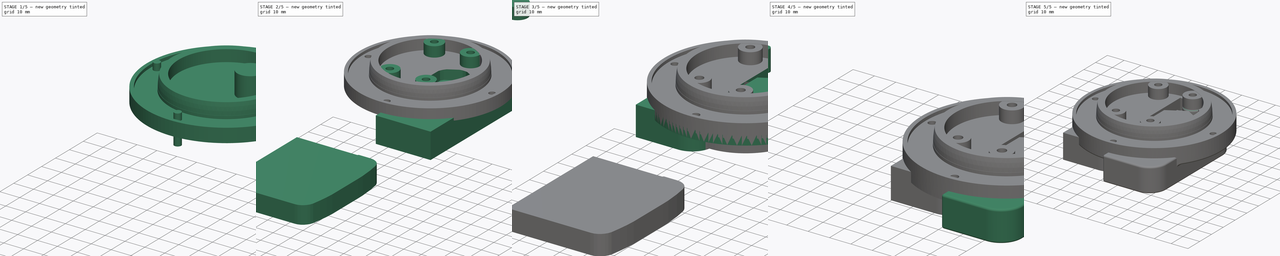
[diagram: build sequence overview — one tinted view per stage of 5, left to right]
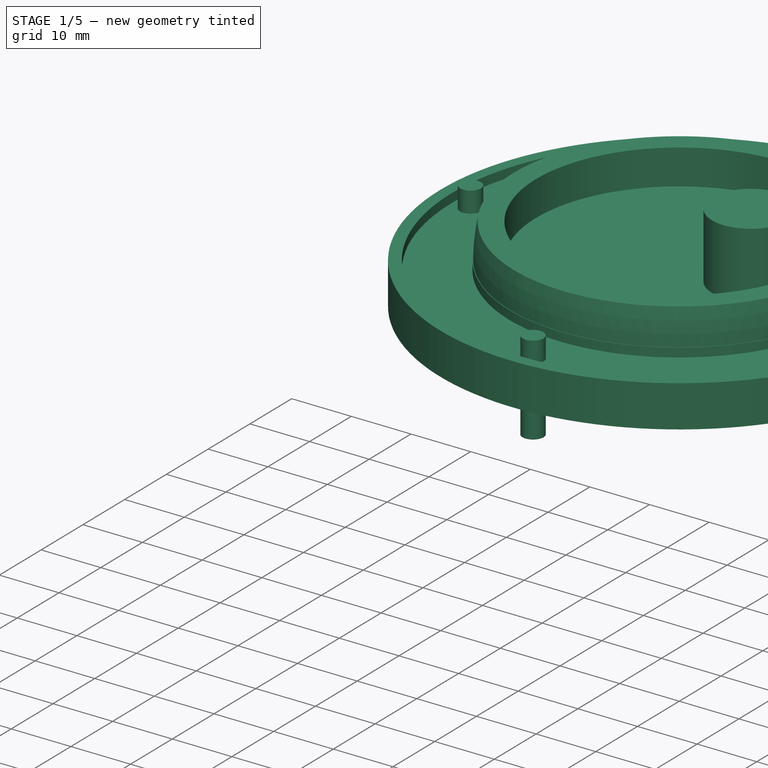
[diagram: stage 1 of 5 — iso view after this stage's code; geometry added in this stage tinted green]
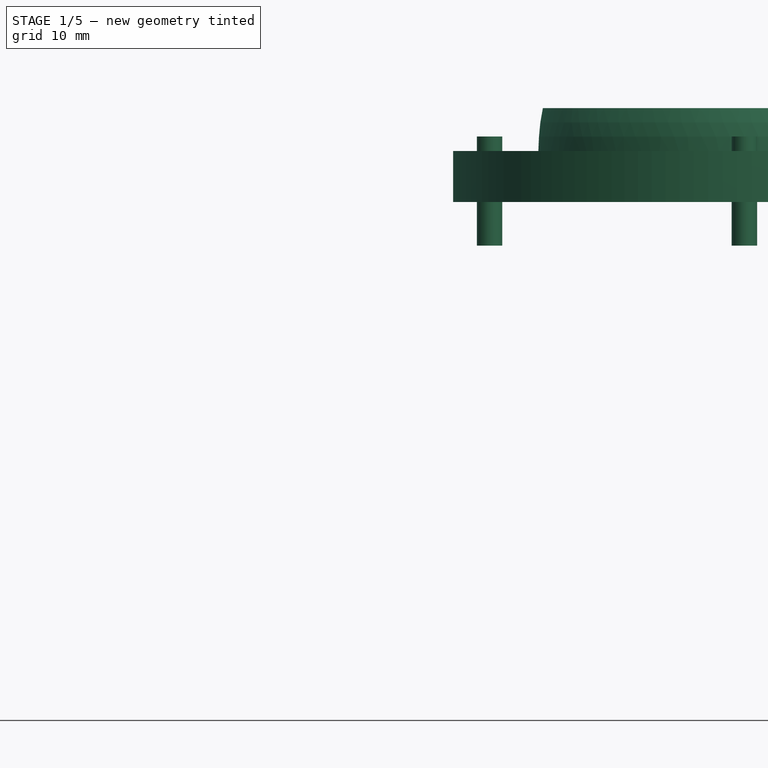
[diagram: stage 1 of 5 — front view after this stage's code; geometry added in this stage tinted green]
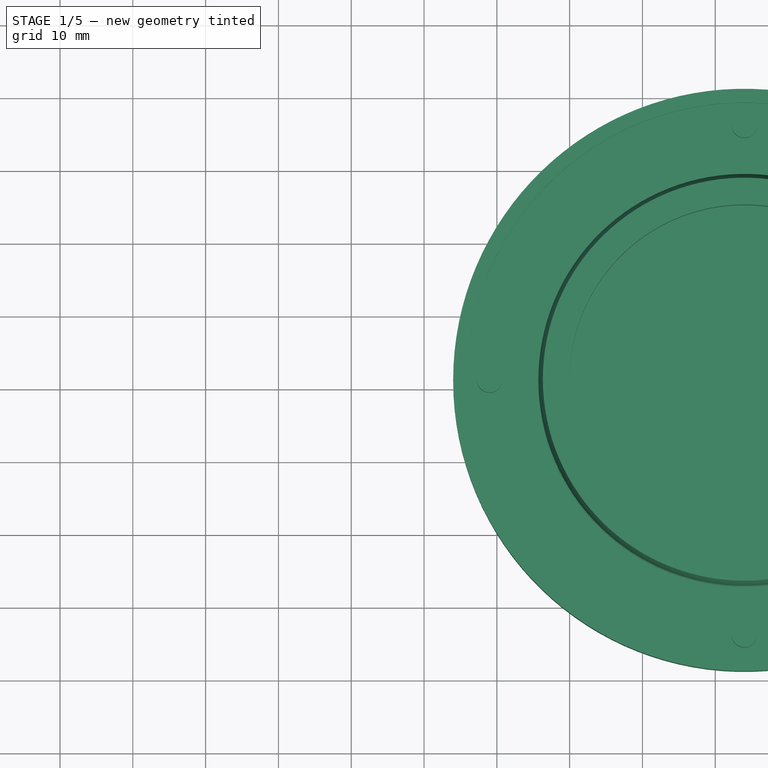
[diagram: stage 1 of 5 — top view after this stage's code; geometry added in this stage tinted green]
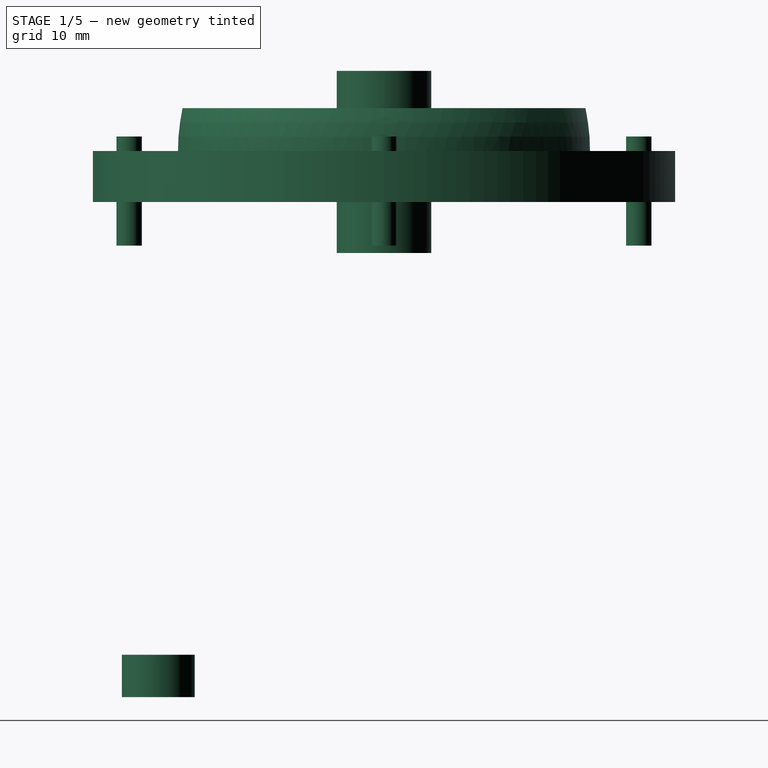
[diagram: stage 1 of 5 — right view after this stage's code; geometry added in this stage tinted green]
FCSTD DOCUMENT  (FreeCAD 0.21R33771 (Git))
Label: Polo_light_module_June_24_2024
License: All rights reserved
LicenseURL: https://en.wikipedia.org/wiki/All_rights_reserved
objects: Part::Cylinder×37, Part::MultiFuse×25, Part::Fillet×15, Part::Cut×14, Part::Feature×11, Sketcher::SketchObject×7, Part::Extrusion×5, Part::Box×3, PartDesign::Pad×2, PartDesign::Body×2, Part::Sphere×2, Part::FeaturePython×1, App::Part×1
note: 126 computed .brp shape members not serialized (recipe doc carries the construction recipe); baked Part::Feature solids carry a one-line shape summary decoded from their .brp

FEATURE [Part::Cylinder] Cylinder053
  Angle = 360
  AttacherType = Attacher::AttachEngine3D
  FirstAngle = 0
  Height = 5.82
  Placement = pos=(0,-21,0) rot=(0,0,1;0rad)
  Radius = 5
  SecondAngle = 0
FEATURE [Part::Cylinder] Cylinder054
  Angle = 360
  AttacherType = Attacher::AttachEngine3D
  FirstAngle = 0
  Height = 5.82
  Placement = pos=(20.5,-21,0) rot=(0,0,1;0rad)
  Radius = 5
  SecondAngle = 0
FEATURE [Part::Cylinder] Cylinder055  label="base003"
  Angle = 360
  AttacherType = Attacher::AttachEngine3D
  FirstAngle = 0
  Height = 7
  Placement = pos=(136,0,68) rot=(0,0,1;0rad)
  Radius = 40
  SecondAngle = 0
FEATURE [Part::Cylinder] Cylinder056  label="baseCut001"
  Angle = 360
  AttacherType = Attacher::AttachEngine3D
  FirstAngle = 0
  Height = 7
  Placement = pos=(5,0,74) rot=(0,0,1;0rad)
  Radius = 24
  SecondAngle = 0
FEATURE [Part::Sphere] Sphere002  label="SphereBase001"
  Angle1 = 0
  Angle2 = 12
  Angle3 = 360
  AttacherType = Attacher::AttachEngine3D
  Placement = pos=(5,0,74) rot=(0,0,1;0rad)
  Radius = 28.3
FEATURE [Part::Cut] Cut010
  Base = -> Sphere002
  Placement = pos=(131,0,1) rot=(0,0,1;0rad)
  Tool = -> Cylinder056
FEATURE [Part::MultiFuse] Fusion034  label="Base001"
  Placement = pos=(-2,10,0) rot=(0,0,1;0rad)
  Shapes = -> [Cut010,Cylinder055]
FEATURE [Part::FeaturePython] Tube  # WARN: FeaturePython — macro-defined, semantics opaque (R4)
  AttacherType = Attacher::AttachEngine3D
  Height = 4
  InnerRadius = 28.4
  OuterRadius = 38.1
  Placement = pos=(134,10,73.5) rot=(0,0,1;0rad)
FEATURE [Part::Cut] Cut
  Base = -> Fusion034
  Tool = -> Tube
FEATURE [Part::Cylinder] Cylinder057  label="m2HeatSetInsets004"
  Angle = 360
  AttacherType = Attacher::AttachEngine3D
  FirstAngle = 0
  Height = 15
  Placement = pos=(-30,0,65) rot=(0,0,1;0rad)
  Radius = 1.75
  SecondAngle = 0
  expr: Radius = 1.75
FEATURE [Part::Cylinder] Cylinder058  label="m2HeatSetInsets005"
  Angle = 360
  AttacherType = Attacher::AttachEngine3D
  FirstAngle = 0
  Height = 15
  Placement = pos=(40,0,65) rot=(0,0,1;0rad)
  Radius = 1.75
  SecondAngle = 0
FEATURE [Part::Cylinder] Cylinder059  label="m2HeatSetInsets006"
  Angle = 360
  AttacherType = Attacher::AttachEngine3D
  FirstAngle = 0
  Height = 15
  Placement = pos=(5,35,65) rot=(0,0,1;0rad)
  Radius = 1.75
  SecondAngle = 0
FEATURE [Part::Cylinder] Cylinder060  label="m2HeatSetInsets007"
  Angle = 360
  AttacherType = Attacher::AttachEngine3D
  FirstAngle = 0
  Height = 15
  Placement = pos=(5,-35,65) rot=(0,0,1;0rad)
  Radius = 1.75
  SecondAngle = 0
  expr: Radius = 1.75
FEATURE [Part::MultiFuse] Fusion035  label="M3 Screws"
  Placement = pos=(129,10,-3) rot=(0,0,1;0rad)
  Shapes = -> [Cylinder057,Cylinder058,Cylinder059,Cylinder060]
FEATURE [Sketcher::SketchObject] Sketch
  FullyConstrained = false
  sketch-geometry (6):
    g0: LineSegment StartX=133.954 StartY=-21.5799 StartZ=0 EndX=136.957 EndY=-23.3151 EndZ=0
    g1: LineSegment StartX=136.957 StartY=-23.3151 StartZ=0 EndX=136.957 EndY=-26.7269 EndZ=0
    g2: LineSegment StartX=136.957 StartY=-26.7269 StartZ=0 EndX=134.013 EndY=-28.4036 EndZ=0
    g3: LineSegment StartX=134.013 StartY=-28.4036 StartZ=0 EndX=131.088 EndY=-26.7074 EndZ=0
    g4: LineSegment StartX=131.088 StartY=-26.7074 StartZ=0 EndX=131.088 EndY=-23.3151 EndZ=0
    g5: LineSegment StartX=131.088 StartY=-23.3151 StartZ=0 EndX=133.954 EndY=-21.5799 EndZ=0
  constraints (7):
    c: Coincident(g1,g0)
    c: Vertical(g1)
    c: Coincident(g2,g1)
    c: Coincident(g4,g3)
    c: Vertical(g4)
    c: Coincident(g5,g4)
    c: Coincident(g5,g0)
FEATURE [Part::Extrusion] Extrude
  Base = -> Sketch
  Dir = (0,0,6)
  DirMode = 0
  FaceMakerClass = Part::FaceMakerBullseye
  LengthFwd = 2.5
  LengthRev = 0
  Placement = pos=(0,0,61) rot=(0,0,1;0rad)
  Solid = true
  Symmetric = false
FEATURE [Sketcher::SketchObject] Sketch002
  FullyConstrained = false
  sketch-geometry (6):
    g0: LineSegment StartX=133.954 StartY=-21.5799 StartZ=0 EndX=136.957 EndY=-23.3151 EndZ=0
    g1: LineSegment StartX=136.957 StartY=-23.3151 StartZ=0 EndX=136.957 EndY=-26.7269 EndZ=0
    g2: LineSegment StartX=136.957 StartY=-26.7269 StartZ=0 EndX=134.013 EndY=-28.4036 EndZ=0
    g3: LineSegment StartX=134.013 StartY=-28.4036 StartZ=0 EndX=131.088 EndY=-26.7074 EndZ=0
    g4: LineSegment StartX=131.088 StartY=-26.7074 StartZ=0 EndX=131.088 EndY=-23.3151 EndZ=0
    g5: LineSegment StartX=131.088 StartY=-23.3151 StartZ=0 EndX=133.954 EndY=-21.5799 EndZ=0
  constraints (7):
    c: Coincident(g1,g0)
    c: Vertical(g1)
    c: Coincident(g2,g1)
    c: Coincident(g4,g3)
    c: Vertical(g4)
    c: Coincident(g5,g4)
    c: Coincident(g5,g0)
FEATURE [Part::Extrusion] Extrude001
  Base = -> Sketch002
  Dir = (0,0,6)
  DirMode = 0
  FaceMakerClass = Part::FaceMakerBullseye
  LengthFwd = 2.5
  LengthRev = 0
  Placement = pos=(0,70,61) rot=(0,0,1;0rad)
  Solid = true
  Symmetric = false
FEATURE [Sketcher::SketchObject] Sketch003
  FullyConstrained = false
  sketch-geometry (6):
    g0: LineSegment StartX=133.954 StartY=-21.5799 StartZ=0 EndX=136.957 EndY=-23.3151 EndZ=0
    g1: LineSegment StartX=136.957 StartY=-23.3151 StartZ=0 EndX=136.957 EndY=-26.7269 EndZ=0
    g2: LineSegment StartX=136.957 StartY=-26.7269 StartZ=0 EndX=134.013 EndY=-28.4036 EndZ=0
    g3: LineSegment StartX=134.013 StartY=-28.4036 StartZ=0 EndX=131.088 EndY=-26.7074 EndZ=0
    g4: LineSegment StartX=131.088 StartY=-26.7074 StartZ=0 EndX=131.088 EndY=-23.3151 EndZ=0
    g5: LineSegment StartX=131.088 StartY=-23.3151 StartZ=0 EndX=133.954 EndY=-21.5799 EndZ=0
  constraints (7):
    c: Coincident(g1,g0)
    c: Vertical(g1)
    c: Coincident(g2,g1)
    c: Coincident(g4,g3)
    c: Vertical(g4)
    c: Coincident(g5,g4)
    c: Coincident(g5,g0)
FEATURE [Part::Extrusion] Extrude002
  Base = -> Sketch003
  Dir = (0,0,6)
  DirMode = 0
  FaceMakerClass = Part::FaceMakerBullseye
  LengthFwd = 2.5
  LengthRev = 0
  Placement = pos=(-35,35,61) rot=(0,0,1;0rad)
  Solid = true
  Symmetric = false
FEATURE [Sketcher::SketchObject] Sketch004
  FullyConstrained = false
  sketch-geometry (6):
    g0: LineSegment StartX=133.954 StartY=-21.5799 StartZ=0 EndX=136.957 EndY=-23.3151 EndZ=0
    g1: LineSegment StartX=136.957 StartY=-23.3151 StartZ=0 EndX=136.957 EndY=-26.7269 EndZ=0
    g2: LineSegment StartX=136.957 StartY=-26.7269 StartZ=0 EndX=134.013 EndY=-28.4036 EndZ=0
    g3: LineSegment StartX=134.013 StartY=-28.4036 StartZ=0 EndX=131.088 EndY=-26.7074 EndZ=0
    g4: LineSegment StartX=131.088 StartY=-26.7074 StartZ=0 EndX=131.088 EndY=-23.3151 EndZ=0
    g5: LineSegment StartX=131.088 StartY=-23.3151 StartZ=0 EndX=133.954 EndY=-21.5799 EndZ=0
  constraints (7):
    c: Coincident(g1,g0)
    c: Vertical(g1)
    c: Coincident(g2,g1)
    c: Coincident(g4,g3)
    c: Vertical(g4)
    c: Coincident(g5,g4)
    c: Coincident(g5,g0)
FEATURE [Part::Extrusion] Extrude003
  Base = -> Sketch004
  Dir = (0,0,6)
  DirMode = 0
  FaceMakerClass = Part::FaceMakerBullseye
  LengthFwd = 2.5
  LengthRev = 0
  Placement = pos=(35,35,61) rot=(0,0,1;0rad)
  Solid = true
  Symmetric = false
FEATURE [Part::MultiFuse] Fusion037  label="Nut Cuts"
  Placement = pos=(0,0,7) rot=(0,0,1;0rad)
  Shapes = -> [Extrude003,Extrude002,Extrude001,Extrude]
FEATURE [Part::MultiFuse] Fusion038  label="Base Cuts 1"
  Shapes = -> [Fusion035,Fusion037]
FEATURE [Part::Cylinder] Cylinder
  Angle = 360
  AttacherType = Attacher::AttachEngine3D
  FirstAngle = 0
  Height = 25
  Placement = pos=(146,10,61) rot=(0,0,1;0rad)
  Radius = 6.5
  SecondAngle = 0
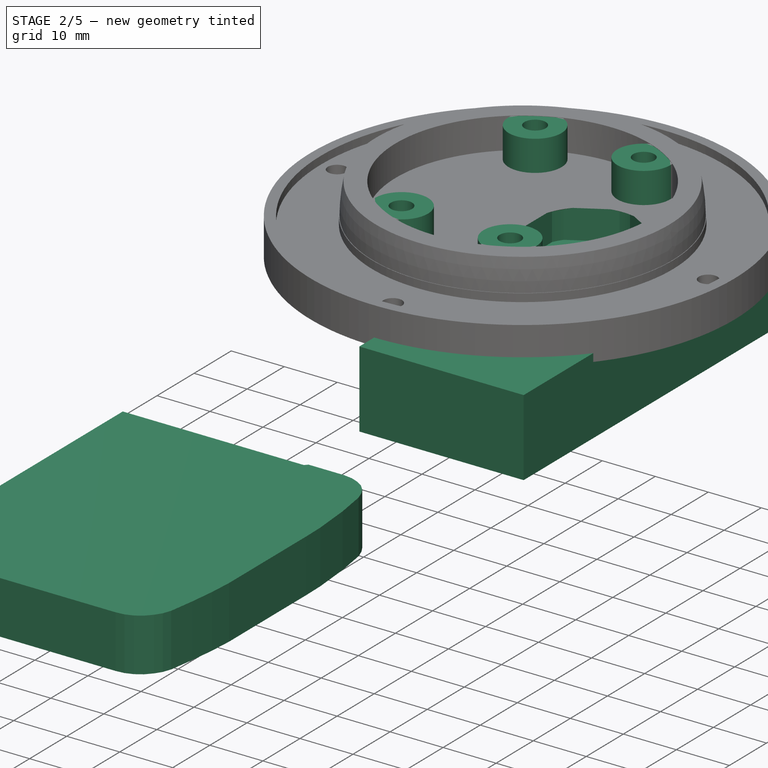
[diagram: stage 2 of 5 — iso view after this stage's code; geometry added in this stage tinted green]
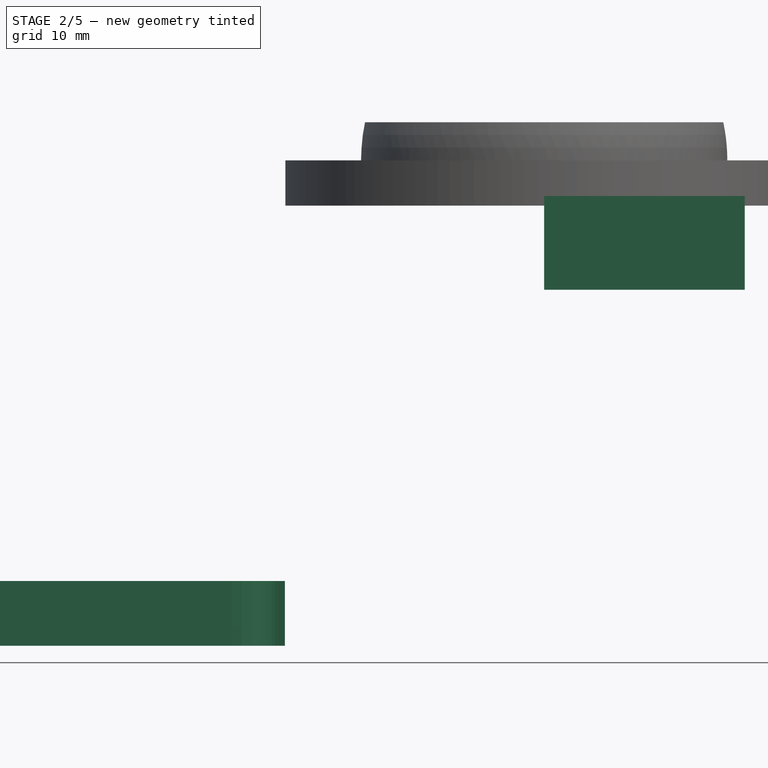
[diagram: stage 2 of 5 — front view after this stage's code; geometry added in this stage tinted green]
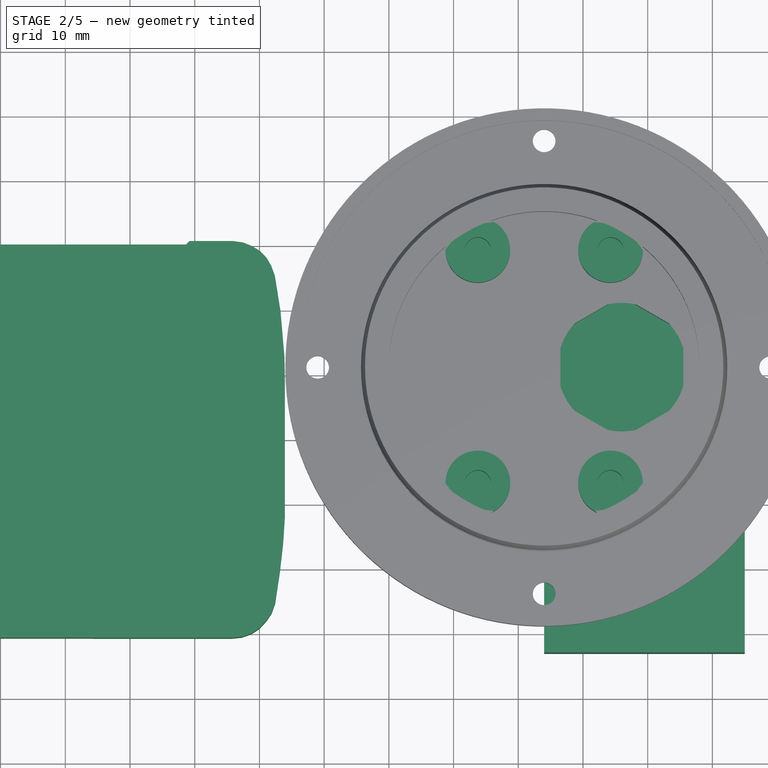
[diagram: stage 2 of 5 — top view after this stage's code; geometry added in this stage tinted green]
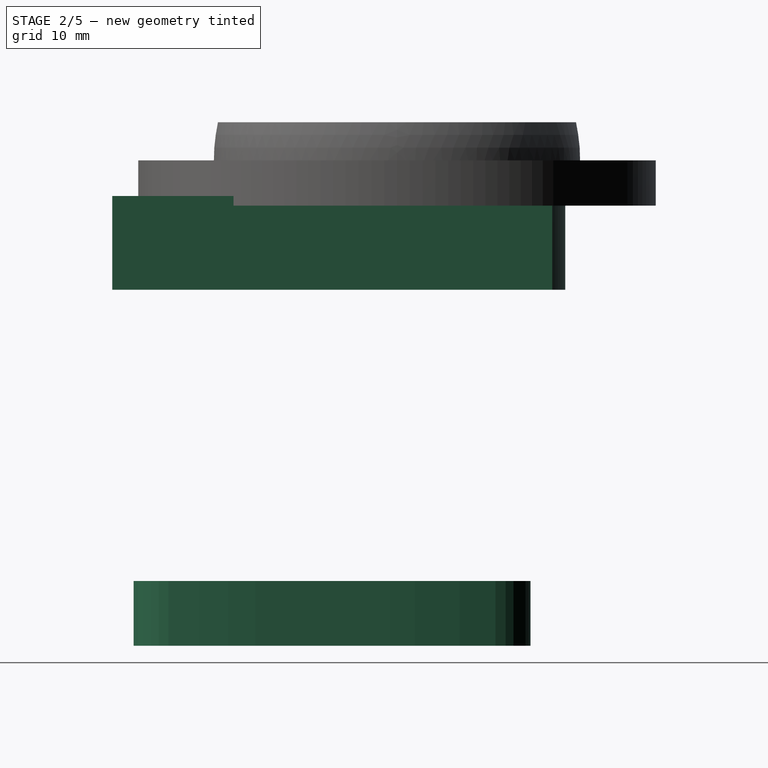
[diagram: stage 2 of 5 — right view after this stage's code; geometry added in this stage tinted green]
FEATURE [Part::Cylinder] Cylinder051
  Angle = 360
  AttacherType = Attacher::AttachEngine3D
  FirstAngle = 0
  Height = 5.82
  Placement = pos=(0,-21,0) rot=(0,0,1;0rad)
  Radius = 5
  SecondAngle = 0
FEATURE [Part::Cylinder] Cylinder052
  Angle = 360
  AttacherType = Attacher::AttachEngine3D
  FirstAngle = 0
  Height = 5.82
  Placement = pos=(20.5,-21,0) rot=(0,0,1;0rad)
  Radius = 5
  SecondAngle = 0
  expr: Radius = 5
FEATURE [Part::MultiFuse] Fusion031  label="m3HeatSetCuts006"
  Placement = pos=(-5,39,70) rot=(0,0,1;0rad)
  Shapes = -> [Cylinder052,Cylinder051]
FEATURE [Part::MultiFuse] Fusion032  label="m3HeatSetCuts007"
  Placement = pos=(-5,3,70) rot=(0,0,1;0rad)
  Shapes = -> [Cylinder054,Cylinder053]
FEATURE [Part::MultiFuse] Fusion033  label="m3HeatSetCuts008"
  Placement = pos=(128.75,10,5) rot=(0,0,1;0rad)
  Shapes = -> [Fusion032,Fusion031]
FEATURE [Part::MultiFuse] Fusion036  label="Fused Base"
  Shapes = -> [Cut,Fusion033]
FEATURE [Part::Cut] Cut011  label="Base01"
  Base = -> Fusion036
  Tool = -> Fusion038
FEATURE [Part::Box] Box007  label="Cube003"
  AttacherType = Attacher::AttachEngine3D
  Height = 14.5
  Length = 31
  Placement = pos=(134,-34,55) rot=(0,0,1;0rad)
  Width = 68
FEATURE [Sketcher::SketchObject] Sketch005
  FullyConstrained = false
  MapMode = 5
  Support = -> [XY_Plane002]
  sketch-geometry (49):
    g0: GeomPoint X=44.5093 Y=-30.668 Z=0
    g1: GeomPoint X=85.7303 Y=-30.7001 Z=0
    g2: GeomPoint X=87.2659 Y=-30.5404 Z=0
    g3: GeomPoint X=91.8923 Y=-26.8165 Z=0
    g4: GeomPoint X=92.4288 Y=-25.33 Z=0
    g5: GeomPoint X=93.1446 Y=-20.5457 Z=0
    g6: GeomPoint X=93.6599 Y=-16.0974 Z=0
    g7: GeomPoint X=93.9312 Y=-11.8931 Z=0
    g8: GeomPoint X=93.9312 Y=6.25646 Z=0
    g9: GeomPoint X=93.9401 Y=8.91625 Z=0
    g10: GeomPoint X=93.8644 Y=12.7559 Z=0
    g11: GeomPoint X=93.2714 Y=19.6725 Z=0
    g12: GeomPoint X=92.3963 Y=25.2341 Z=0
    g13: GeomPoint X=91.8282 Y=26.7962 Z=0
    g14: GeomPoint X=91.1285 Y=27.9983 Z=0
    g15: GeomPoint X=90.1597 Y=29.0389 Z=0
    g16: GeomPoint X=88.8662 Y=29.8509 Z=0
    g17: GeomPoint X=87.4629 Y=30.4081 Z=0
    g18: GeomPoint X=85.8119 Y=30.6351 Z=0
    g19: GeomPoint X=79.1753 Y=30.6351 Z=0
    g20: GeomPoint X=78.6575 Y=30.0897 Z=0
    g21: GeomPoint X=44.5006 Y=30.0897 Z=0
    g22: LineSegment StartX=44.5093 StartY=-30.668 StartZ=0 EndX=85.7303 EndY=-30.7001 EndZ=0
    g23: LineSegment StartX=85.7303 StartY=-30.7001 StartZ=0 EndX=87.2659 EndY=-30.5404 EndZ=0
    g24: LineSegment StartX=91.0945 StartY=-28.018 StartZ=0 EndX=91.8923 EndY=-26.8165 EndZ=0
    g25: LineSegment StartX=91.8923 StartY=-26.8165 StartZ=0 EndX=92.4288 EndY=-25.33 EndZ=0
    g26: LineSegment StartX=92.4288 StartY=-25.33 StartZ=0 EndX=93.1446 EndY=-20.5457 EndZ=0
    g27: LineSegment StartX=93.1446 StartY=-20.5457 StartZ=0 EndX=93.6599 EndY=-16.0974 EndZ=0
    g28: LineSegment StartX=93.6599 StartY=-16.0974 StartZ=0 EndX=93.9312 EndY=-11.8931 EndZ=0
    g29: LineSegment StartX=93.9312 StartY=-11.8931 StartZ=0 EndX=93.9312 EndY=6.25646 EndZ=0
    g30: LineSegment StartX=93.9312 StartY=6.25646 StartZ=0 EndX=93.9401 EndY=8.91625 EndZ=0
    g31: GeomPoint X=93.5743 Y=16.1437 Z=0
    g32: LineSegment StartX=93.9401 StartY=8.91625 StartZ=0 EndX=93.8644 EndY=12.7559 EndZ=0
    g33: LineSegment StartX=93.8644 StartY=12.7559 StartZ=0 EndX=93.5743 EndY=16.1437 EndZ=0
    g34: LineSegment StartX=93.5743 StartY=16.1437 StartZ=0 EndX=93.2714 EndY=19.6725 EndZ=0
    g35: LineSegment StartX=93.2714 StartY=19.6725 StartZ=0 EndX=92.3963 EndY=25.2341 EndZ=0
    g36: LineSegment StartX=92.3963 StartY=25.2341 StartZ=0 EndX=91.8282 EndY=26.7962 EndZ=0
    g37: LineSegment StartX=91.8282 StartY=26.7962 StartZ=0 EndX=91.1285 EndY=27.9983 EndZ=0
    g38: LineSegment StartX=91.1285 StartY=27.9983 StartZ=0 EndX=90.1597 EndY=29.0389 EndZ=0
    g39: LineSegment StartX=90.1597 StartY=29.0389 StartZ=0 EndX=88.8662 EndY=29.8509 EndZ=0
    g40: LineSegment StartX=88.8662 StartY=29.8509 StartZ=0 EndX=87.4629 EndY=30.4081 EndZ=0
    g41: LineSegment StartX=87.4629 StartY=30.4081 StartZ=0 EndX=85.8119 EndY=30.6351 EndZ=0
    g42: LineSegment StartX=85.8119 StartY=30.6351 StartZ=0 EndX=79.1753 EndY=30.6351 EndZ=0
    g43: LineSegment StartX=79.1753 StartY=30.6351 StartZ=0 EndX=78.6575 EndY=30.0897 EndZ=0
    g44: LineSegment StartX=78.6575 StartY=30.0897 StartZ=0 EndX=44.5006 EndY=30.0897 EndZ=0
    g45: LineSegment StartX=44.5093 StartY=-30.668 StartZ=0 EndX=44.5006 EndY=30.0897 EndZ=0
    g46: LineSegment StartX=87.2659 StartY=-30.5404 StartZ=0 EndX=88.7273 EndY=-30.0287 EndZ=0
    g47: LineSegment StartX=88.7273 StartY=-30.0287 StartZ=0 EndX=90.018 EndY=-29.1936 EndZ=0
    g48: LineSegment StartX=90.018 StartY=-29.1936 StartZ=0 EndX=91.0945 EndY=-28.018 EndZ=0
  constraints (42):
    c: Coincident(g22,g0)
    c: Coincident(g22,g1)
    c: Coincident(g23,g22)
    c: Coincident(g23,g2)
    c: Coincident(g24,g3)
    c: Coincident(g25,g24)
    c: Coincident(g25,g4)
    c: Coincident(g26,g25)
    c: Coincident(g26,g5)
    c: Coincident(g27,g26)
    c: Coincident(g27,g6)
    c: Coincident(g28,g27)
    c: Coincident(g28,g7)
    c: Coincident(g29,g28)
    c: Coincident(g29,g8)
    c: Coincident(g30,g29)
    c: Coincident(g30,g9)
    c: Coincident(g32,g30)
    c: Coincident(g32,g10)
    c: Coincident(g33,g32)
    c: Coincident(g33,g31)
    c: Coincident(g34,g11)
    c: Coincident(g35,g34)
    c: Coincident(g35,g12)
    c: Coincident(g36,g13)
    c: Coincident(g37,g14)
    c: Coincident(g38,g37)
    c: Coincident(g38,g15)
    c: Coincident(g39,g16)
    c: Coincident(g40,g17)
    c: Coincident(g41,g18)
    c: Coincident(g42,g41)
    c: Coincident(g42,g19)
    c: Coincident(g43,g42)
    c: Coincident(g43,g20)
    c: Coincident(g44,g43)
    c: Coincident(g44,g21)
    c: Coincident(g45,g22)
    c: Coincident(g46,g23)
    c: Coincident(g47,g46)
    c: Coincident(g48,g47)
    c: Coincident(g48,g24)
FEATURE [PartDesign::Pad] Pad002
  Direction = (0,0,1)
  Length = 10
  Length2 = 10
  Profile = -> Sketch005
  ReferenceAxis = -> Sketch005 [N_Axis]
  Type = 0
  expr: Length = 10
FEATURE [Part::Feature] Part__Feature004  label="69915K46_Plastic Submersible Cord Grip"
  shape: bbox 8.548 x 8.548 x 5.5 mm, 6 faces (baked)
FEATURE [Part::Feature] Part__Feature005  label="69915K46_Plastic Submersible Cord Grip001"
  shape: bbox 14.5 x 14.5 x 1.5 mm, 4 faces (baked)
FEATURE [Part::Feature] Part__Feature006  label="69915K46_Plastic Submersible Cord Grip002"
  shape: bbox 16.78 x 16.78 x 11 mm, 39 faces (baked)
FEATURE [Part::Feature] Part__Feature007  label="69915K46_Plastic Submersible Cord Grip003"
  shape: bbox 20.9 x 20.9 x 7.541 mm, 32 faces (baked)
FEATURE [Part::Feature] Part__Feature008  label="69915K46_Plastic Submersible Cord Grip004"
  shape: bbox 16.5 x 16.5 x 26.93 mm, 70 faces (baked)
FEATURE [App::Part] _9915K46_Plastic_Submersible_Cord_Grip  label="69915K46_Plastic Submersible Cord Grip005"
  Group = -> [Part__Feature004,Part__Feature005,Part__Feature006,Part__Feature007,Part__Feature008]
  Origin = -> Origin
  Placement = pos=(146,10,49) rot=(1,0,0;3.14159rad)
FEATURE [Part::Feature] Part__Feature010  label="69915K46_Plastic Submersible Cord Grip007"
  Placement = pos=(146,10,84) rot=(0,0,1;0rad)
  shape: bbox 20.9 x 20.9 x 7.541 mm, 32 faces (baked)
FEATURE [Part::Cut] Cut013
  Base = -> Cut011
  Tool = -> Part__Feature010
FEATURE [Part::Cut] Cut014
  Base = -> Cut013
  Tool = -> Cylinder
FEATURE [Part::Cylinder] Cylinder061
  Angle = 360
  AttacherType = Attacher::AttachEngine3D
  FirstAngle = 0
  Height = 10
  Placement = pos=(0,-21,0) rot=(0,0,1;0rad)
  Radius = 2
  SecondAngle = 0
FEATURE [Part::Cylinder] Cylinder062
  Angle = 360
  AttacherType = Attacher::AttachEngine3D
  FirstAngle = 0
  Height = 10
  Placement = pos=(20.5,-21,0) rot=(0,0,1;0rad)
  Radius = 2
  SecondAngle = 0
FEATURE [Part::Cylinder] Cylinder063
  Angle = 360
  AttacherType = Attacher::AttachEngine3D
  FirstAngle = 0
  Height = 10
  Placement = pos=(0,-21,0) rot=(0,0,1;0rad)
  Radius = 2
  SecondAngle = 0
FEATURE [Part::Cylinder] Cylinder064
  Angle = 360
  AttacherType = Attacher::AttachEngine3D
  FirstAngle = 0
  Height = 10
  Placement = pos=(20.5,-21,0) rot=(0,0,1;0rad)
  Radius = 2
  SecondAngle = 0
FEATURE [Part::MultiFuse] Fusion039  label="m3HeatSetCuts009"
  Placement = pos=(-5,39,70) rot=(0,0,1;0rad)
  Shapes = -> [Cylinder062,Cylinder061]
FEATURE [Part::MultiFuse] Fusion040  label="m3HeatSetCuts010"
  Placement = pos=(-5,3,70) rot=(0,0,1;0rad)
  Shapes = -> [Cylinder064,Cylinder063]
FEATURE [Part::MultiFuse] Fusion041  label="m3HeatSetCuts011"
  Placement = pos=(128.75,10,4.5) rot=(0,0,1;0rad)
  Shapes = -> [Fusion040,Fusion039]
FEATURE [Part::Feature] Part__Feature011  label="69915K46_Plastic Submersible Cord Grip008"
  Placement = pos=(146,10,82) rot=(0,0,1;0rad)
  shape: bbox 20.9 x 20.9 x 7.541 mm, 32 faces (baked)
FEATURE [Part::Cut] Cut015
  Base = -> Cut014
  Tool = -> Part__Feature011
FEATURE [Part::Cylinder] Cylinder065
  Angle = 180
  AttacherType = Attacher::AttachEngine3D
  FirstAngle = 0
  Height = 13
  Placement = pos=(134,10,55) rot=(0,0,1;4.71239rad)
  Radius = 26
  SecondAngle = 0
FEATURE [Part::Cut] Cut017
  Base = -> Cut015
  Tool = -> Fusion041
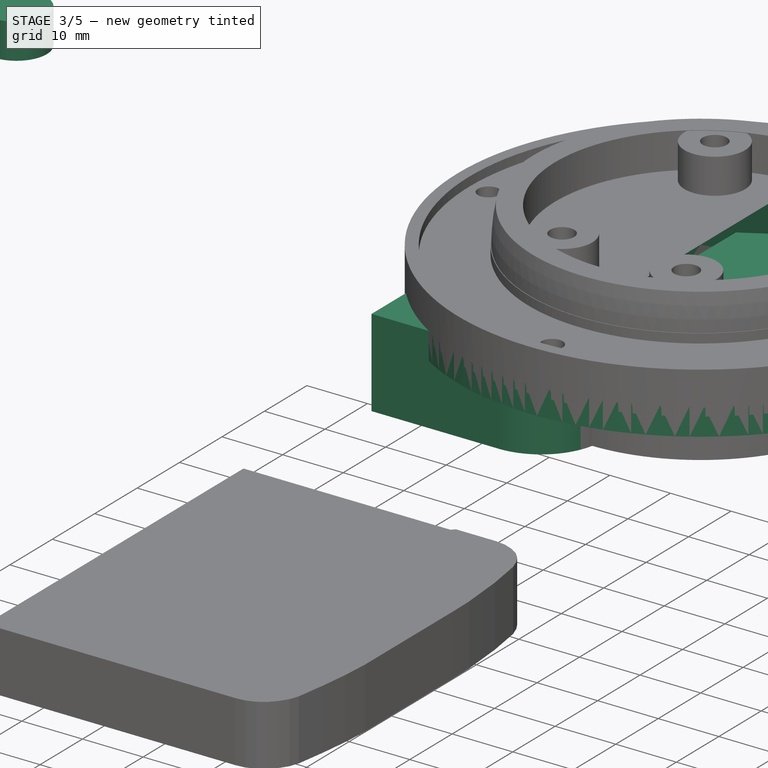
[diagram: stage 3 of 5 — iso view after this stage's code; geometry added in this stage tinted green]
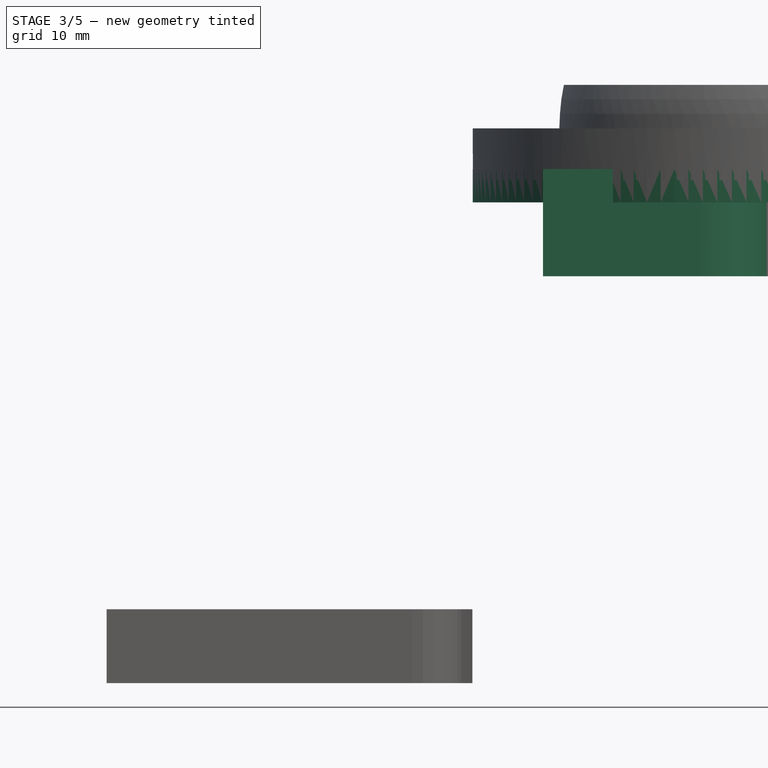
[diagram: stage 3 of 5 — front view after this stage's code; geometry added in this stage tinted green]
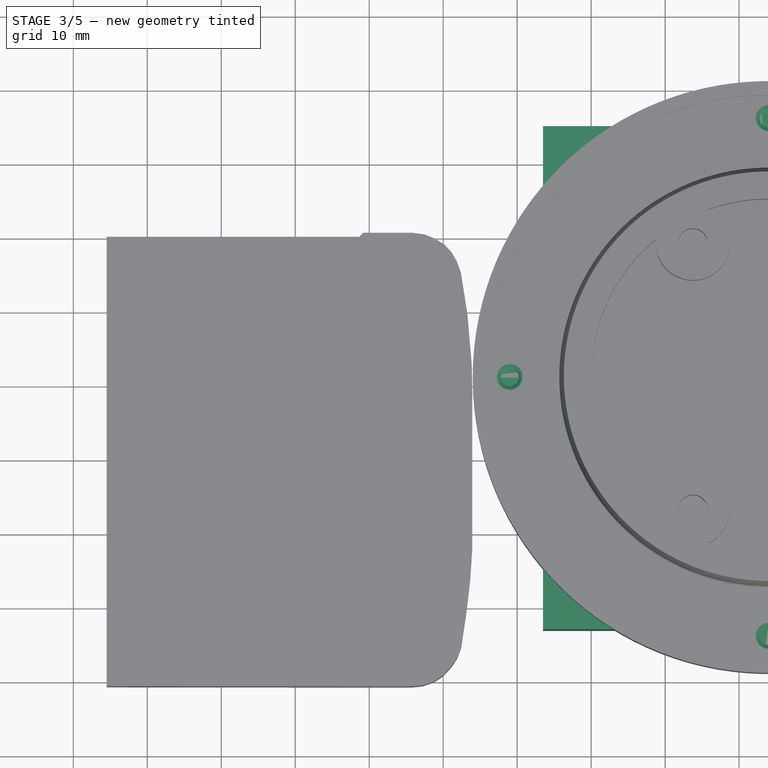
[diagram: stage 3 of 5 — top view after this stage's code; geometry added in this stage tinted green]
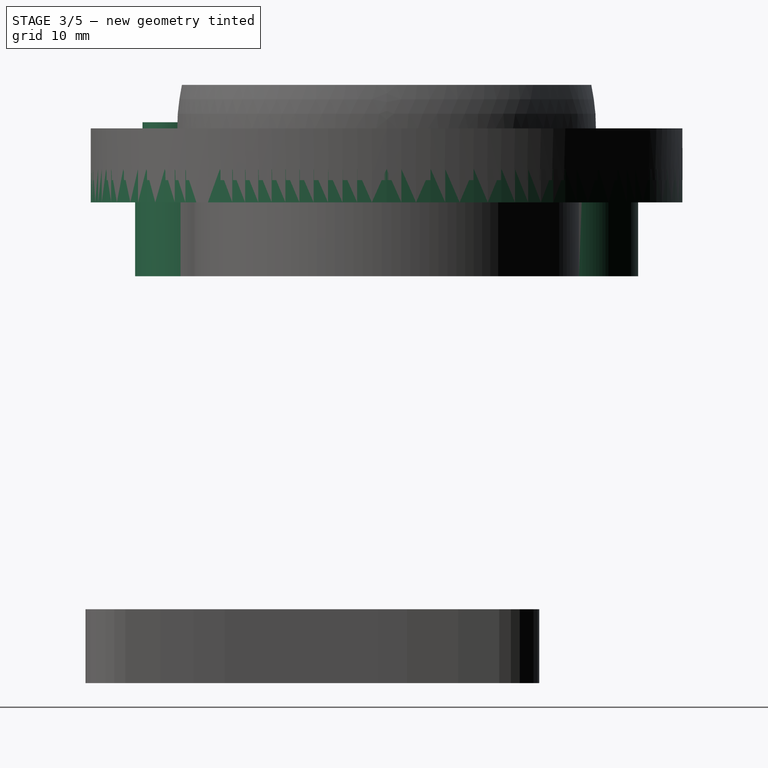
[diagram: stage 3 of 5 — right view after this stage's code; geometry added in this stage tinted green]
FEATURE [Part::Cylinder] Cylinder022
  Angle = 360
  AttacherType = Attacher::AttachEngine3D
  FirstAngle = 0
  Height = 5.82
  Placement = pos=(0,-21,0) rot=(0,0,1;0rad)
  Radius = 5
  SecondAngle = 0
FEATURE [Part::Cylinder] Cylinder023
  Angle = 360
  AttacherType = Attacher::AttachEngine3D
  FirstAngle = 0
  Height = 5.82
  Placement = pos=(20.5,-21,0) rot=(0,0,1;0rad)
  Radius = 5
  SecondAngle = 0
  expr: Radius = 5
FEATURE [Part::Cylinder] Cylinder024
  Angle = 360
  AttacherType = Attacher::AttachEngine3D
  FirstAngle = 0
  Height = 5.82
  Placement = pos=(0,-21,0) rot=(0,0,1;0rad)
  Radius = 5
  SecondAngle = 0
FEATURE [Part::Cylinder] Cylinder025
  Angle = 360
  AttacherType = Attacher::AttachEngine3D
  FirstAngle = 0
  Height = 5.82
  Placement = pos=(20.5,-21,0) rot=(0,0,1;0rad)
  Radius = 5
  SecondAngle = 0
FEATURE [Part::Cylinder] Cylinder026  label="base"
  Angle = 360
  AttacherType = Attacher::AttachEngine3D
  FirstAngle = 0
  Height = 4.5
  Placement = pos=(136,0,65) rot=(0,0,1;0rad)
  Radius = 40
  SecondAngle = 0
FEATURE [Part::Cylinder] Cylinder027  label="baseCut"
  Angle = 360
  AttacherType = Attacher::AttachEngine3D
  FirstAngle = 0
  Height = 7
  Placement = pos=(5,0,74) rot=(0,0,1;0rad)
  Radius = 24
  SecondAngle = 0
FEATURE [Part::MultiFuse] Fusion010  label="m3HeatSetCuts"
  Placement = pos=(-5,39,70) rot=(0,0,1;0rad)
  Shapes = -> [Cylinder023,Cylinder022]
FEATURE [Part::MultiFuse] Fusion011  label="m3HeatSetCuts001"
  Placement = pos=(-5,3,70) rot=(0,0,1;0rad)
  Shapes = -> [Cylinder025,Cylinder024]
FEATURE [Sketcher::SketchObject] Sketch001
  FullyConstrained = false
  MapMode = 5
  Support = -> [XY_Plane001]
  sketch-geometry (49):
    g0: GeomPoint X=44.5093 Y=-30.668 Z=0
    g1: GeomPoint X=85.7303 Y=-30.7001 Z=0
    g2: GeomPoint X=87.2659 Y=-30.5404 Z=0
    g3: GeomPoint X=91.8923 Y=-26.8165 Z=0
    g4: GeomPoint X=92.4288 Y=-25.33 Z=0
    g5: GeomPoint X=93.1446 Y=-20.5457 Z=0
    g6: GeomPoint X=93.6599 Y=-16.0974 Z=0
    g7: GeomPoint X=93.9312 Y=-11.8931 Z=0
    g8: GeomPoint X=93.9312 Y=6.25646 Z=0
    g9: GeomPoint X=93.9401 Y=8.91625 Z=0
    g10: GeomPoint X=93.8644 Y=12.7559 Z=0
    g11: GeomPoint X=93.2714 Y=19.6725 Z=0
    g12: GeomPoint X=92.3963 Y=25.2341 Z=0
    g13: GeomPoint X=91.8282 Y=26.7962 Z=0
    g14: GeomPoint X=91.1285 Y=27.9983 Z=0
    g15: GeomPoint X=90.1597 Y=29.0389 Z=0
    g16: GeomPoint X=88.8662 Y=29.8509 Z=0
    g17: GeomPoint X=87.4629 Y=30.4081 Z=0
    g18: GeomPoint X=85.8119 Y=30.6351 Z=0
    g19: GeomPoint X=79.1753 Y=30.6351 Z=0
    g20: GeomPoint X=78.6575 Y=30.0897 Z=0
    g21: GeomPoint X=44.5006 Y=30.0897 Z=0
    g22: LineSegment StartX=44.5093 StartY=-30.668 StartZ=0 EndX=85.7303 EndY=-30.7001 EndZ=0
    g23: LineSegment StartX=85.7303 StartY=-30.7001 StartZ=0 EndX=87.2659 EndY=-30.5404 EndZ=0
    g24: LineSegment StartX=91.0945 StartY=-28.018 StartZ=0 EndX=91.8923 EndY=-26.8165 EndZ=0
    g25: LineSegment StartX=91.8923 StartY=-26.8165 StartZ=0 EndX=92.4288 EndY=-25.33 EndZ=0
    g26: LineSegment StartX=92.4288 StartY=-25.33 StartZ=0 EndX=93.1446 EndY=-20.5457 EndZ=0
    g27: LineSegment StartX=93.1446 StartY=-20.5457 StartZ=0 EndX=93.6599 EndY=-16.0974 EndZ=0
    g28: LineSegment StartX=93.6599 StartY=-16.0974 StartZ=0 EndX=93.9312 EndY=-11.8931 EndZ=0
    g29: LineSegment StartX=93.9312 StartY=-11.8931 StartZ=0 EndX=93.9312 EndY=6.25646 EndZ=0
    g30: LineSegment StartX=93.9312 StartY=6.25646 StartZ=0 EndX=93.9401 EndY=8.91625 EndZ=0
    g31: GeomPoint X=93.5743 Y=16.1437 Z=0
    g32: LineSegment StartX=93.9401 StartY=8.91625 StartZ=0 EndX=93.8644 EndY=12.7559 EndZ=0
    g33: LineSegment StartX=93.8644 StartY=12.7559 StartZ=0 EndX=93.5743 EndY=16.1437 EndZ=0
    g34: LineSegment StartX=93.5743 StartY=16.1437 StartZ=0 EndX=93.2714 EndY=19.6725 EndZ=0
    g35: LineSegment StartX=93.2714 StartY=19.6725 StartZ=0 EndX=92.3963 EndY=25.2341 EndZ=0
    g36: LineSegment StartX=92.3963 StartY=25.2341 StartZ=0 EndX=91.8282 EndY=26.7962 EndZ=0
    g37: LineSegment StartX=91.8282 StartY=26.7962 StartZ=0 EndX=91.1285 EndY=27.9983 EndZ=0
    g38: LineSegment StartX=91.1285 StartY=27.9983 StartZ=0 EndX=90.1597 EndY=29.0389 EndZ=0
    g39: LineSegment StartX=90.1597 StartY=29.0389 StartZ=0 EndX=88.8662 EndY=29.8509 EndZ=0
    g40: LineSegment StartX=88.8662 StartY=29.8509 StartZ=0 EndX=87.4629 EndY=30.4081 EndZ=0
    g41: LineSegment StartX=87.4629 StartY=30.4081 StartZ=0 EndX=85.8119 EndY=30.6351 EndZ=0
    g42: LineSegment StartX=85.8119 StartY=30.6351 StartZ=0 EndX=79.1753 EndY=30.6351 EndZ=0
    g43: LineSegment StartX=79.1753 StartY=30.6351 StartZ=0 EndX=78.6575 EndY=30.0897 EndZ=0
    g44: LineSegment StartX=78.6575 StartY=30.0897 StartZ=0 EndX=44.5006 EndY=30.0897 EndZ=0
    g45: LineSegment StartX=44.5093 StartY=-30.668 StartZ=0 EndX=44.5006 EndY=30.0897 EndZ=0
    g46: LineSegment StartX=87.2659 StartY=-30.5404 StartZ=0 EndX=88.7273 EndY=-30.0287 EndZ=0
    g47: LineSegment StartX=88.7273 StartY=-30.0287 StartZ=0 EndX=90.018 EndY=-29.1936 EndZ=0
    g48: LineSegment StartX=90.018 StartY=-29.1936 StartZ=0 EndX=91.0945 EndY=-28.018 EndZ=0
  constraints (42):
    c: Coincident(g22,g0)
    c: Coincident(g22,g1)
    c: Coincident(g23,g22)
    c: Coincident(g23,g2)
    c: Coincident(g24,g3)
    c: Coincident(g25,g24)
    c: Coincident(g25,g4)
    c: Coincident(g26,g25)
    c: Coincident(g26,g5)
    c: Coincident(g27,g26)
    c: Coincident(g27,g6)
    c: Coincident(g28,g27)
    c: Coincident(g28,g7)
    c: Coincident(g29,g28)
    c: Coincident(g29,g8)
    c: Coincident(g30,g29)
    c: Coincident(g30,g9)
    c: Coincident(g32,g30)
    c: Coincident(g32,g10)
    c: Coincident(g33,g32)
    c: Coincident(g33,g31)
    c: Coincident(g34,g11)
    c: Coincident(g35,g34)
    c: Coincident(g35,g12)
    c: Coincident(g36,g13)
    c: Coincident(g37,g14)
    c: Coincident(g38,g37)
    c: Coincident(g38,g15)
    c: Coincident(g39,g16)
    c: Coincident(g40,g17)
    c: Coincident(g41,g18)
    c: Coincident(g42,g41)
    c: Coincident(g42,g19)
    c: Coincident(g43,g42)
    c: Coincident(g43,g20)
    c: Coincident(g44,g43)
    c: Coincident(g44,g21)
    c: Coincident(g45,g22)
    c: Coincident(g46,g23)
    c: Coincident(g47,g46)
    c: Coincident(g48,g47)
    c: Coincident(g48,g24)
FEATURE [PartDesign::Pad] Pad001
  Direction = (0,0,1)
  Length = 10
  Length2 = 10
  Profile = -> Sketch001
  ReferenceAxis = -> Sketch001 [N_Axis]
  Type = 0
  expr: Length = 10
FEATURE [Part::Sphere] Sphere001  label="SphereBase"
  Angle1 = 0
  Angle2 = 12
  Angle3 = 360
  AttacherType = Attacher::AttachEngine3D
  Placement = pos=(5,0,74) rot=(0,0,1;0rad)
  Radius = 28.3
FEATURE [Part::Cut] Cut003
  Base = -> Sphere001
  Placement = pos=(131,0,-5) rot=(0,0,1;0rad)
  Tool = -> Cylinder027
FEATURE [Part::MultiFuse] Fusion017  label="Base"
  Placement = pos=(-2,10,0) rot=(0,0,1;0rad)
  Shapes = -> [Cut003,Cylinder026]
FEATURE [Part::Feature] Part__Feature  label="90592A085_Steel Hex Nut"
  Placement = pos=(169,10,62) rot=(0,0,1;0rad)
  shape: bbox 6.309 x 6.309 x 2.726 mm, 43 faces (baked)
FEATURE [Part::Feature] Part__Feature001  label="90592A085_Steel Hex Nut001"
  Placement = pos=(99,10,62) rot=(0,0,1;0rad)
  shape: bbox 6.309 x 6.309 x 2.726 mm, 43 faces (baked)
FEATURE [Part::Feature] Part__Feature002  label="90592A085_Steel Hex Nut002"
  Placement = pos=(134,45,62) rot=(0,0,1;0rad)
  shape: bbox 6.309 x 6.309 x 2.726 mm, 43 faces (baked)
FEATURE [Part::Feature] Part__Feature003  label="90592A085_Steel Hex Nut003"
  Placement = pos=(134,-25,62) rot=(0,0,1;0rad)
  shape: bbox 6.309 x 6.309 x 2.726 mm, 43 faces (baked)
FEATURE [Part::MultiFuse] Fusion  label="Hex Nuts"
  Placement = pos=(0,0,7) rot=(0,0,1;0rad)
  Shapes = -> [Part__Feature003,Part__Feature002,Part__Feature001,Part__Feature]
FEATURE [Part::Fillet] Fillet018
  Base = -> Box007
  Edges = 1 edges r=10: [Edge5]
FEATURE [Part::Fillet] Fillet019
  Base = -> Fillet018
  Edges = 1 edges r=10: [Edge4]
FEATURE [PartDesign::Body] Body002
  Group = -> [Sketch005,Pad002]
  Origin = -> Origin002
  Placement = pos=(68,0,55) rot=(0,0,1;0rad)
  Tip = -> Pad002
FEATURE [Part::Cut] Cut012  label="base004"
  Base = -> Fillet019
  Placement = pos=(-30.5,10,0) rot=(0,0,1;0rad)
  Tool = -> Body002
FEATURE [Sketcher::SketchObject] Sketch006
  FullyConstrained = false
  Placement = pos=(5,-10,0) rot=(0,0,1;0rad)
  sketch-geometry (7):
    g0: LineSegment StartX=147.262 StartY=9.79861 StartZ=0 EndX=152.716 EndY=20.3917 EndZ=0
    g1: LineSegment StartX=152.716 StartY=20.3917 StartZ=0 EndX=146.269 EndY=30.4118 EndZ=0
    g2: LineSegment StartX=146.269 StartY=30.4118 StartZ=0 EndX=134.368 EndY=29.8388 EndZ=0
    g3: LineSegment StartX=134.368 StartY=29.8388 StartZ=0 EndX=128.914 EndY=19.2457 EndZ=0
    g4: LineSegment StartX=128.914 StartY=19.2457 StartZ=0 EndX=135.361 EndY=9.2256 EndZ=0
    g5: LineSegment StartX=135.361 StartY=9.2256 StartZ=0 EndX=147.262 EndY=9.79861 EndZ=0
    g6: Circle CenterX=140.815 CenterY=19.8187 CenterZ=0 NormalX=0 NormalY=0 NormalZ=1 AngleXU=0 Radius=11.9148
  constraints (13):
    c: Coincident(g0,g1)
    c: Coincident(g1,g2)
    c: Coincident(g2,g3)
    c: Coincident(g3,g4)
    c: Coincident(g4,g5)
    c: Coincident(g5,g0)
    c: Equal(g0, g1-g5) x5
    c: PointOnObject(g0,g6)
    c: PointOnObject(g1,g6)
    c: PointOnObject(g2,g6)
    c: PointOnObject(g3,g6)
    c: PointOnObject(g4,g6)
    c: PointOnObject(g5,g6)
FEATURE [Part::Extrusion] Extrude005
  Base = -> Sketch006
  Dir = (0,0,15)
  DirMode = 0
  FaceMakerClass = Part::FaceMakerBullseye
  LengthFwd = 18
  LengthRev = 0
  Placement = pos=(20.5,-65,57) rot=(0,0,1;0.471239rad)
  Solid = true
  Symmetric = false
FEATURE [Part::Cylinder] Cylinder066
  Angle = 180
  AttacherType = Attacher::AttachEngine3D
  FirstAngle = 0
  Height = 11
  Placement = pos=(134,10,64) rot=(0,0,-1;1.5708rad)
  Radius = 22
  SecondAngle = 0
FEATURE [Part::MultiFuse] Fusion042  label="Fused-Base"
  Shapes = -> [Cylinder065,Cut017,Cut012]
FEATURE [Part::Cut] Cut018
  Base = -> Fusion042
  Tool = -> Cylinder066
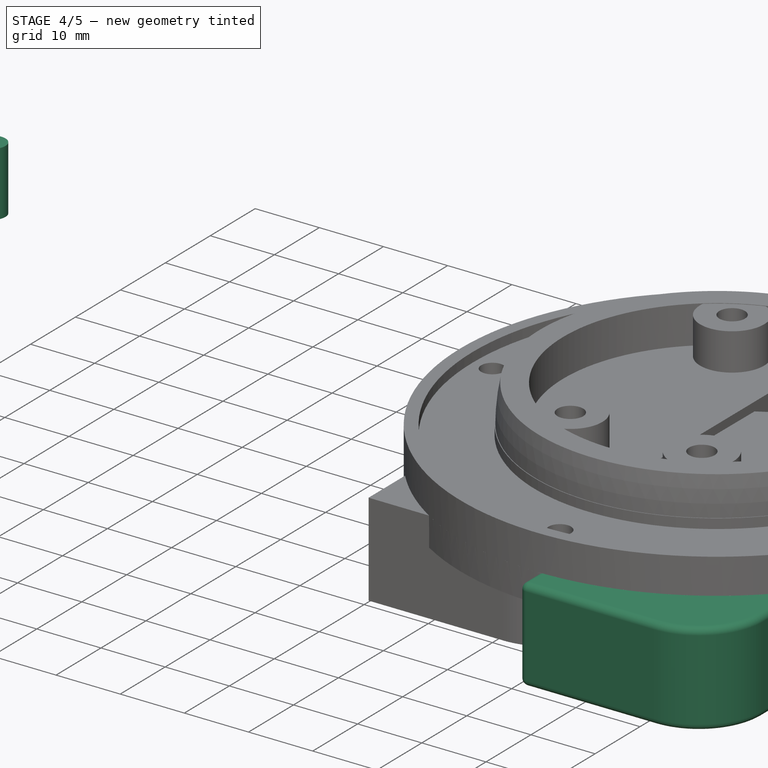
[diagram: stage 4 of 5 — iso view after this stage's code; geometry added in this stage tinted green]
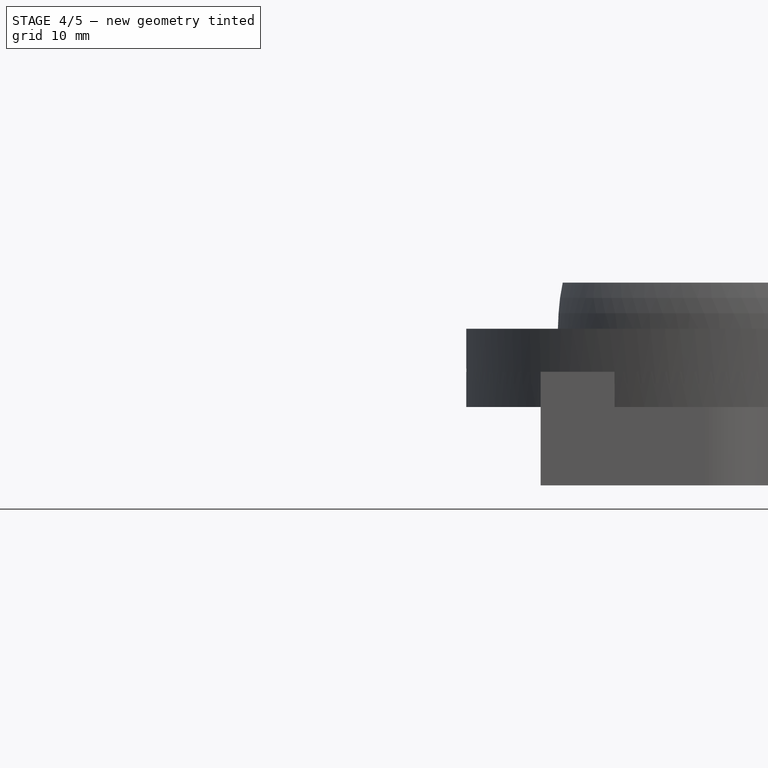
[diagram: stage 4 of 5 — front view after this stage's code; geometry added in this stage tinted green]
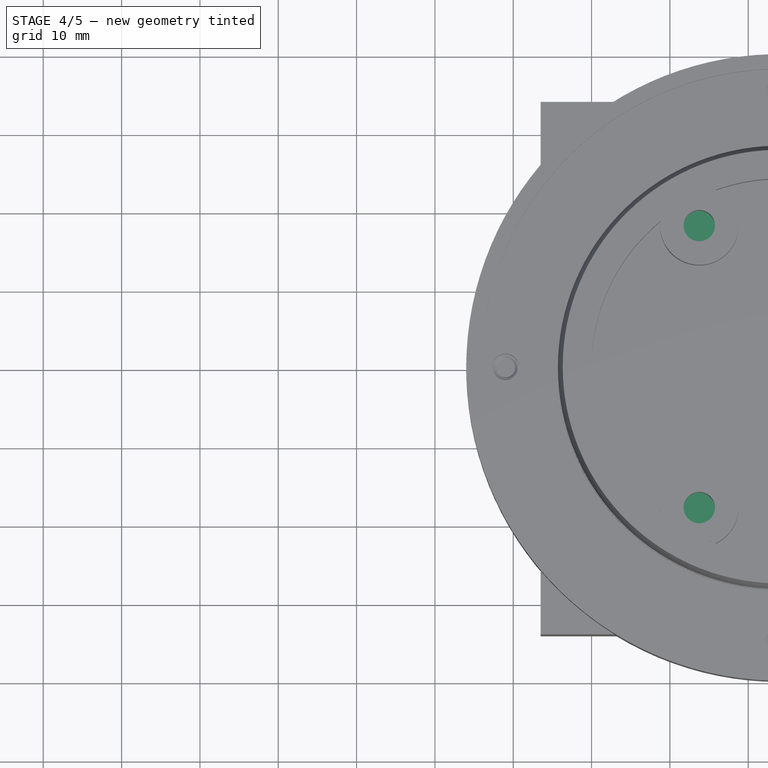
[diagram: stage 4 of 5 — top view after this stage's code; geometry added in this stage tinted green]
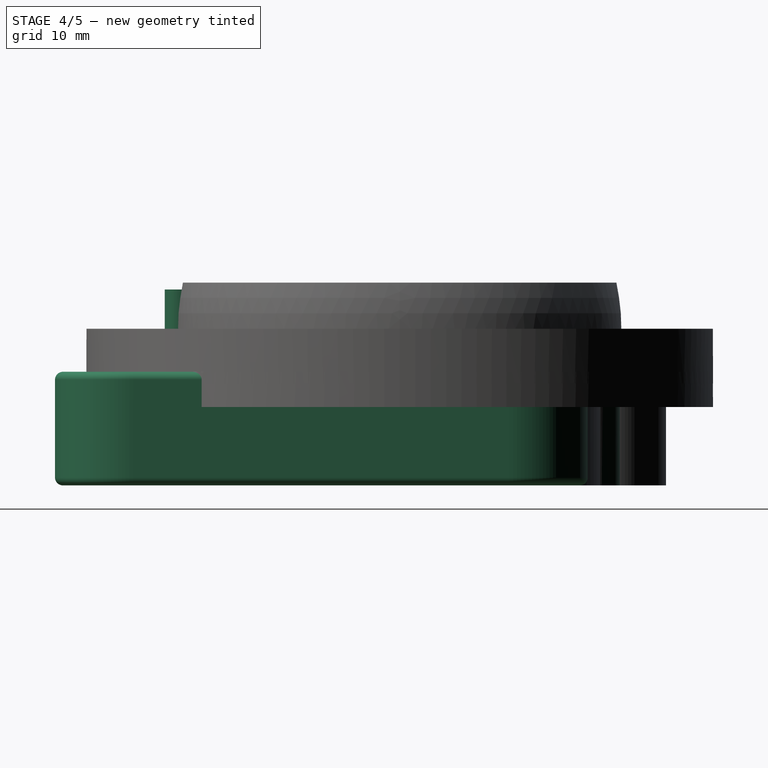
[diagram: stage 4 of 5 — right view after this stage's code; geometry added in this stage tinted green]
FEATURE [Part::Box] Box004  label="Cube002"
  AttacherType = Attacher::AttachEngine3D
  Height = 14.5
  Length = 31
  Placement = pos=(134,-34,55) rot=(0,0,1;0rad)
  Width = 68
FEATURE [Part::Cylinder] Cylinder036
  Angle = 360
  AttacherType = Attacher::AttachEngine3D
  FirstAngle = 0
  Height = 10
  Placement = pos=(0,-21,0) rot=(0,0,1;0rad)
  Radius = 2
  SecondAngle = 0
FEATURE [Part::Cylinder] Cylinder037
  Angle = 360
  AttacherType = Attacher::AttachEngine3D
  FirstAngle = 0
  Height = 10
  Placement = pos=(20.5,-21,0) rot=(0,0,1;0rad)
  Radius = 2
  SecondAngle = 0
FEATURE [Part::Cylinder] Cylinder038
  Angle = 360
  AttacherType = Attacher::AttachEngine3D
  FirstAngle = 0
  Height = 10
  Placement = pos=(0,-21,0) rot=(0,0,1;0rad)
  Radius = 2
  SecondAngle = 0
FEATURE [Part::Cylinder] Cylinder039
  Angle = 360
  AttacherType = Attacher::AttachEngine3D
  FirstAngle = 0
  Height = 10
  Placement = pos=(20.5,-21,0) rot=(0,0,1;0rad)
  Radius = 2
  SecondAngle = 0
FEATURE [Part::Cylinder] Cylinder044  label="m3Cut002"
  Angle = 360
  AttacherType = Attacher::AttachEngine3D
  FirstAngle = 0
  Height = 7
  Placement = pos=(-4.5,-22,62.5) rot=(0,0,1;0rad)
  Radius = 1.8
  SecondAngle = 0
FEATURE [Part::Cylinder] Cylinder045  label="m3Cut003"
  Angle = 360
  AttacherType = Attacher::AttachEngine3D
  FirstAngle = 0
  Height = 7
  Placement = pos=(-4.5,-22,67.5) rot=(0,0,1;0rad)
  Radius = 3
  SecondAngle = 0
FEATURE [Part::Cylinder] Cylinder046
  Angle = 360
  AttacherType = Attacher::AttachEngine3D
  FirstAngle = 0
  Height = 14.5
  Placement = pos=(134,32.6,55) rot=(0,0,1;0rad)
  Radius = 5.5
  SecondAngle = 0
FEATURE [Part::Cylinder] Cylinder048  label="m3_5Add001"
  Angle = 360
  AttacherType = Attacher::AttachEngine3D
  FirstAngle = 0
  Height = 3
  Placement = pos=(150.5,22,62.5) rot=(0,0,1;0rad)
  Radius = 3
  SecondAngle = 0
FEATURE [Part::Fillet] Fillet005
  Base = -> Box004
  Edges = 1 edges r=10: [Edge5]
FEATURE [Part::Fillet] Fillet006
  Base = -> Fillet005
  Edges = 1 edges r=10: [Edge4]
FEATURE [Part::MultiFuse] Fusion012  label="m3HeatSetCuts002"
  Placement = pos=(128.75,10,-1) rot=(0,0,1;0rad)
  Shapes = -> [Fusion011,Fusion010]
FEATURE [Part::MultiFuse] Fusion019  label="m3HeatSetCuts003"
  Placement = pos=(-5,39,70) rot=(0,0,1;0rad)
  Shapes = -> [Cylinder037,Cylinder036]
FEATURE [Part::MultiFuse] Fusion020  label="m3HeatSetCuts004"
  Placement = pos=(-5,3,70) rot=(0,0,1;0rad)
  Shapes = -> [Cylinder039,Cylinder038]
FEATURE [Part::MultiFuse] Fusion025  label="cutScrew"
  Placement = pos=(155,44,0) rot=(0,0,1;0rad)
  Shapes = -> [Cylinder045,Cylinder044]
FEATURE [PartDesign::Body] Body001
  Group = -> [Sketch001,Pad001]
  Origin = -> Origin001
  Placement = pos=(68,0,55) rot=(0,0,1;0rad)
  Tip = -> Pad001
FEATURE [Part::Cut] Cut004  label="base002"
  Base = -> Fillet006
  Tool = -> Body001
FEATURE [Part::Fillet] Fillet007
  Base = -> Cut004
  Edges = 1 edges r=1: [Edge41]
FEATURE [Part::Fillet] Fillet008
  Base = -> Fillet007
  Edges = 1 edges r=1: [Edge6]
FEATURE [Part::Fillet] Fillet009
  Base = -> Fillet008
  Edges = 1 edges r=1: [Edge17]
FEATURE [Part::MultiFuse] Fusion026  label="base001"
  Shapes = -> [Fusion017,Cylinder048,Cylinder046,Fusion012]
FEATURE [Part::MultiFuse] Fusion030
  Shapes = -> [Fillet009,Fusion026]
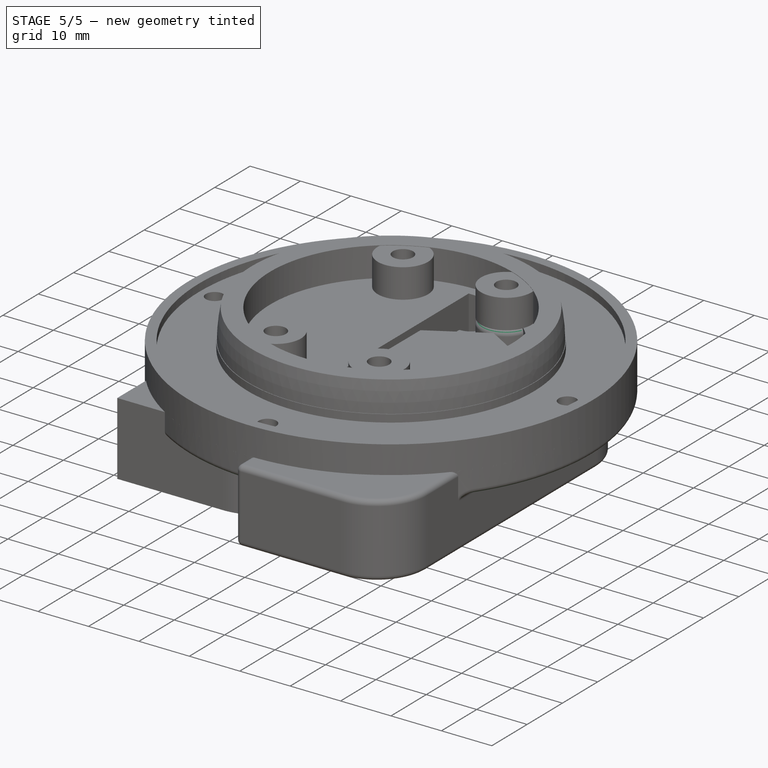
[diagram: stage 5 of 5 — iso view after this stage's code; geometry added in this stage tinted green]
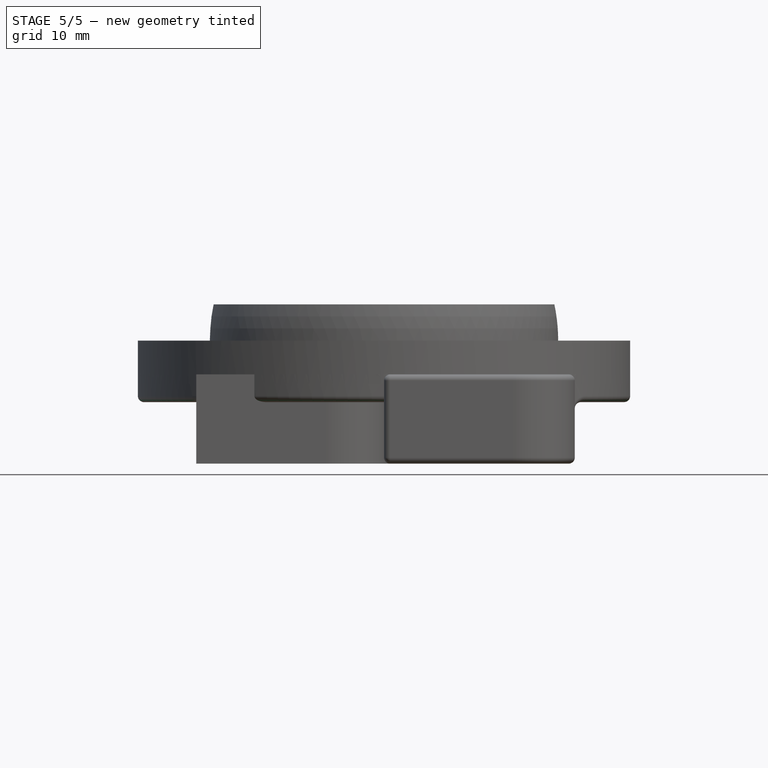
[diagram: stage 5 of 5 — front view after this stage's code; geometry added in this stage tinted green]
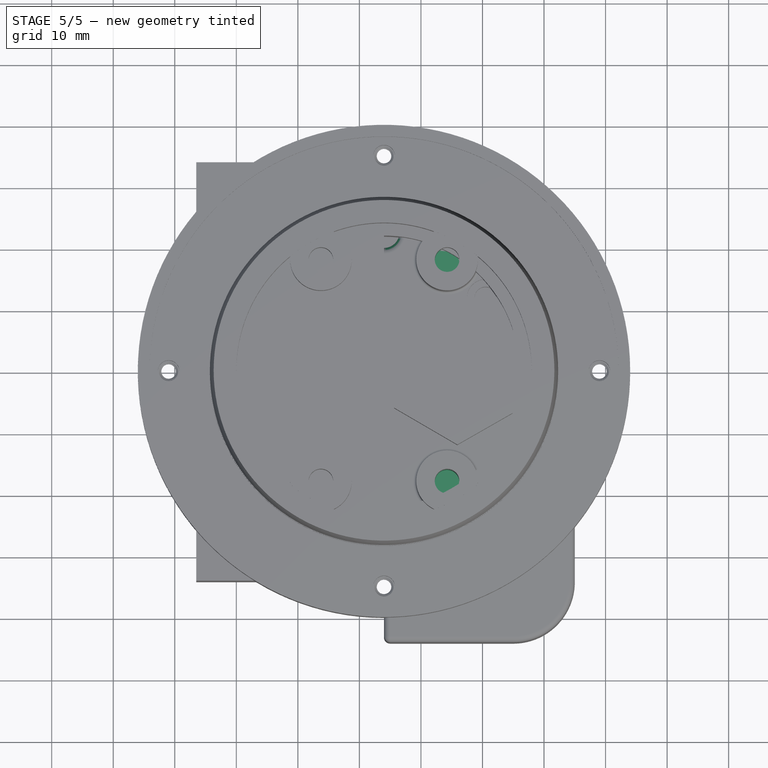
[diagram: stage 5 of 5 — top view after this stage's code; geometry added in this stage tinted green]
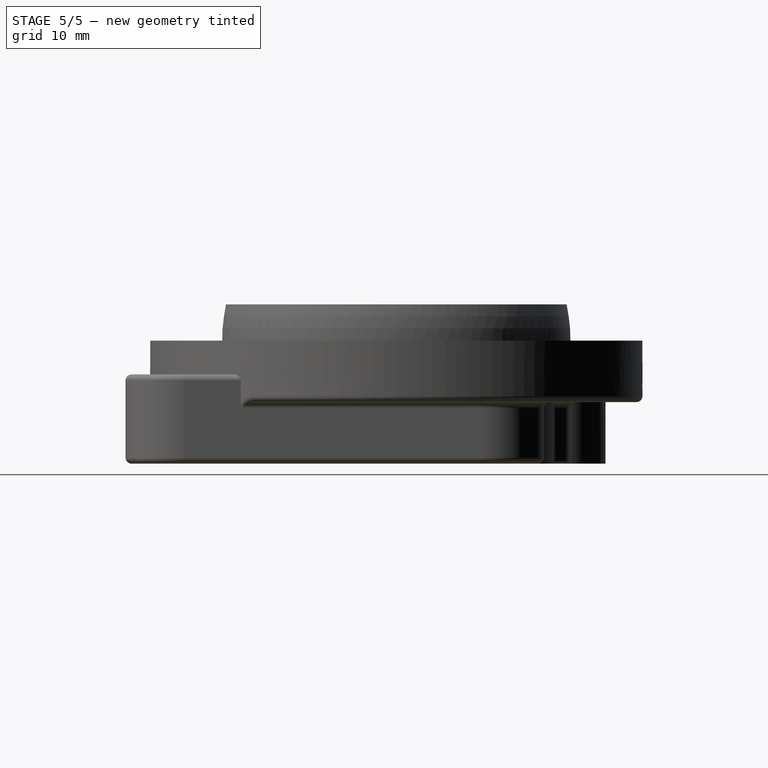
[diagram: stage 5 of 5 — right view after this stage's code; geometry added in this stage tinted green]
FEATURE [Part::Box] Box006  label="wireGuardCut"
  AttacherType = Attacher::AttachEngine3D
  Height = 10
  Length = 15
  Placement = pos=(127,30.1,65) rot=(1,0,0;3.14159rad)
  Width = 10
FEATURE [Part::Cylinder] Cylinder032  label="m2HeatSetInsets"
  Angle = 360
  AttacherType = Attacher::AttachEngine3D
  FirstAngle = 0
  Height = 10
  Placement = pos=(-30,0,65) rot=(0,0,1;0rad)
  Radius = 2
  SecondAngle = 0
  expr: Radius = 2
FEATURE [Part::Cylinder] Cylinder033  label="m2HeatSetInsets001"
  Angle = 360
  AttacherType = Attacher::AttachEngine3D
  FirstAngle = 0
  Height = 10
  Placement = pos=(40,0,65) rot=(0,0,1;0rad)
  Radius = 2
  SecondAngle = 0
FEATURE [Part::Cylinder] Cylinder034  label="m2HeatSetInsets002"
  Angle = 360
  AttacherType = Attacher::AttachEngine3D
  FirstAngle = 0
  Height = 10
  Placement = pos=(5,35,65) rot=(0,0,1;0rad)
  Radius = 2
  SecondAngle = 0
FEATURE [Part::Cylinder] Cylinder035  label="m2HeatSetInsets003"
  Angle = 360
  AttacherType = Attacher::AttachEngine3D
  FirstAngle = 0
  Height = 10
  Placement = pos=(5,-35,65) rot=(0,0,1;0rad)
  Radius = 2
  SecondAngle = 0
  expr: Radius = 2
FEATURE [Part::Cylinder] Cylinder047  label="WireCut"
  Angle = 360
  AttacherType = Attacher::AttachEngine3D
  FirstAngle = 0
  Height = 60
  Placement = pos=(134,32.6,20) rot=(0,0,1;0rad)
  Radius = 2.5
  SecondAngle = 0
FEATURE [Part::Cylinder] Cylinder050  label="m3Cut004"
  Angle = 360
  AttacherType = Attacher::AttachEngine3D
  FirstAngle = 0
  Height = 2
  Placement = pos=(150.5,-22,65) rot=(0,0,1;0rad)
  Radius = 3.2
  SecondAngle = 0
FEATURE [Part::MultiFuse] Fusion016
  Placement = pos=(129,10,0) rot=(0,0,1;0rad)
  Shapes = -> [Cylinder032,Cylinder033,Cylinder034,Cylinder035]
FEATURE [Part::MultiFuse] Fusion021  label="m3HeatSetCuts005"
  Placement = pos=(128.75,10,-1) rot=(0,0,1;0rad)
  Shapes = -> [Fusion020,Fusion019]
FEATURE [Part::MultiFuse] Fusion028  label="cuts"
  Shapes = -> [Cylinder047,Fusion016,Fusion021,Fusion025]
FEATURE [Part::Cut] Cut007
  Base = -> Fusion030
  Tool = -> Fusion028
FEATURE [Part::Fillet] Fillet010
  Base = -> Cut007
  Edges = 1 edges r=1: [Edge175]
FEATURE [Part::Fillet] Fillet011
  Base = -> Fillet010
  Edges = 1 edges r=0.5: [Edge7]
FEATURE [Part::Fillet] Fillet012
  Base = -> Fillet011
  Edges = 1 edges r=1: [Edge60]
FEATURE [Part::Fillet] Fillet013
  Base = -> Fillet012
  Edges = 1 edges r=1: [Edge86]
FEATURE [Part::Cut] Cut008
  Base = -> Fillet013
  Tool = -> Box006
FEATURE [Part::Fillet] Fillet014
  Base = -> Cut008
  Edges = 2 edges r=1: [Edge74,Edge75]
FEATURE [Part::Fillet] Fillet015
  Base = -> Fillet014
  Edges = 2 edges r=1: [Edge47,Edge199]
FEATURE [Part::Fillet] Fillet016
  Base = -> Fillet015
  Edges = 4 edges r=1: [Edge63,Edge94,Edge102,Edge105]
FEATURE [Part::Fillet] Fillet017  label="lightModule"
  Base = -> Fillet016
  Edges = 4 edges r=0.5: [Edge16,Edge22,Edge74,Edge75]
FEATURE [Part::Cut] Cut009  label="lightModule001"
  Base = -> Fillet017
  Tool = -> Cylinder050
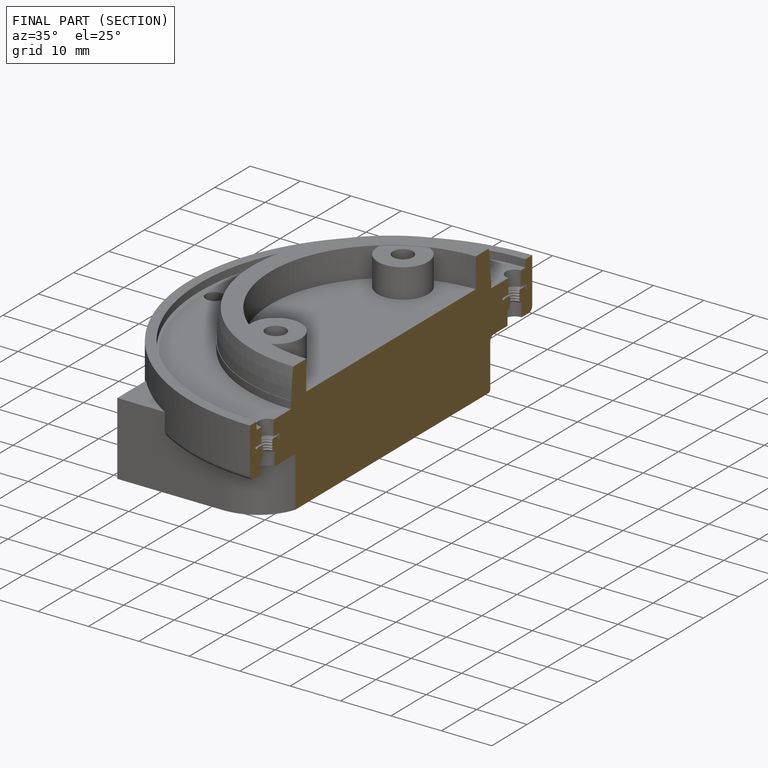
[diagram: finished part — half-section view (interior)]
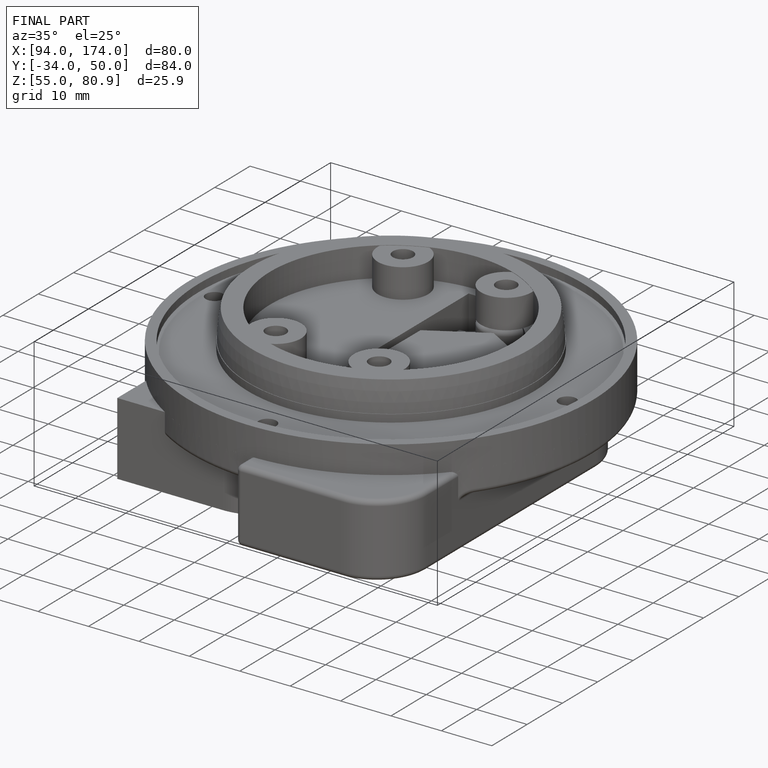
[diagram: finished part — iso view with bounding-box wireframe]
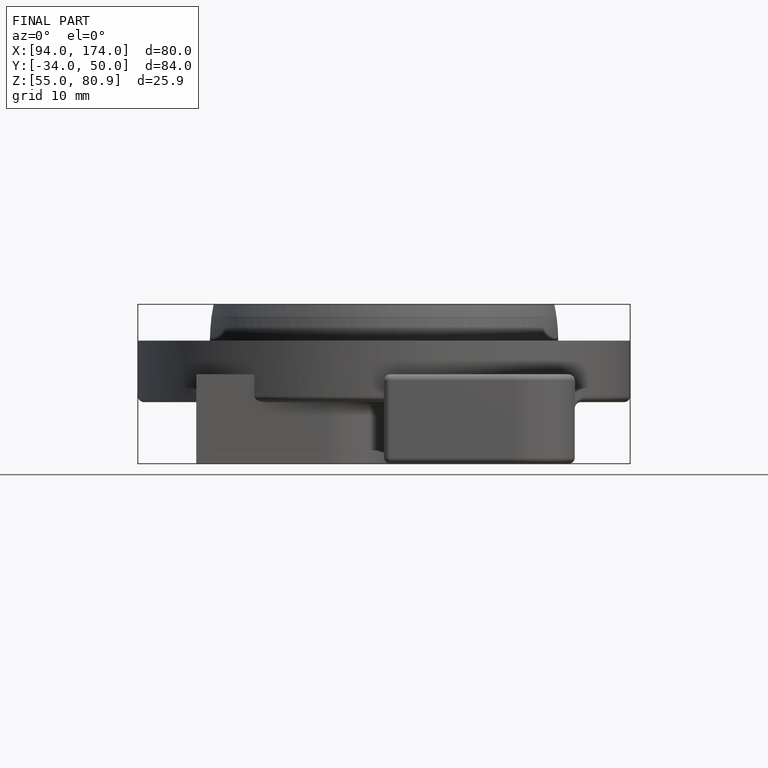
[diagram: finished part — front view with bounding-box wireframe]
